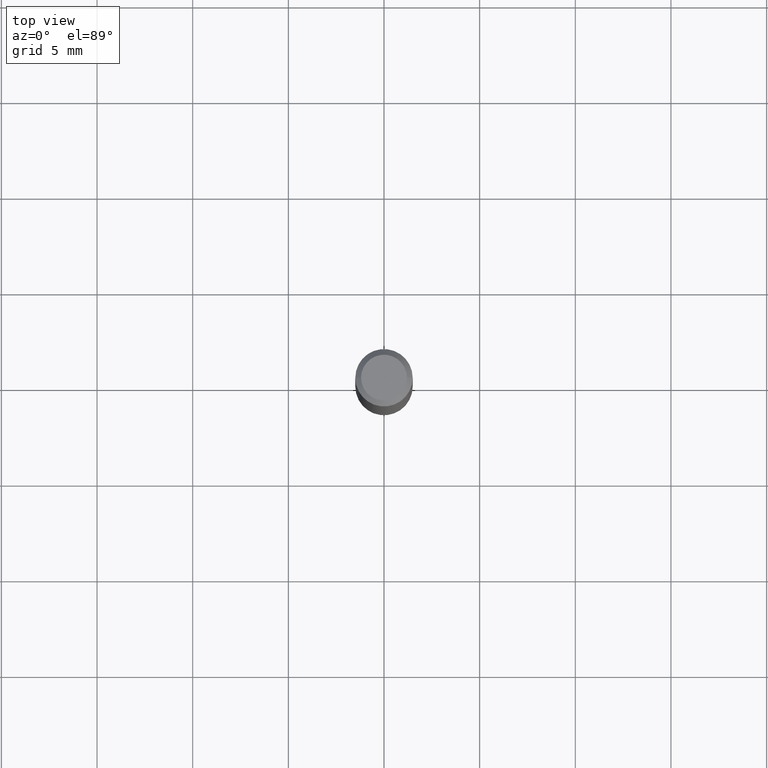
[diagram: clean part render]
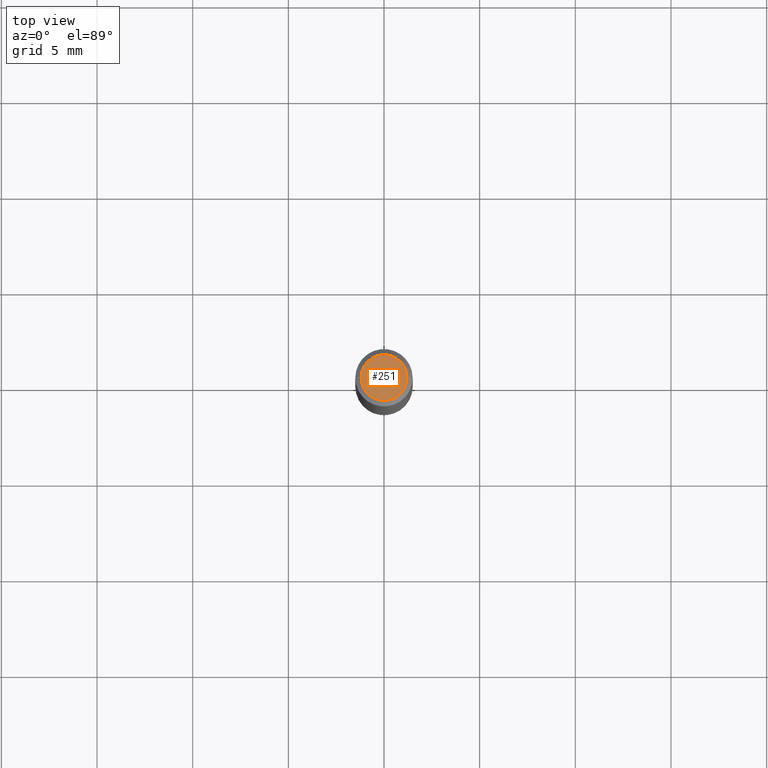
[diagram: same view with one face highlighted and labeled with its STEP entity id]
A machine part, top view. The second image highlights one B-rep face of the part: STEP entity #251.
In plain terms, the highlighted planar face has unit normal (0, -0, -1).
Its self-contained STEP definition (entity closure, byte-faithful):
#28 = EDGE_LOOP ( 'NONE', ( #66, #149 ) ) ;
#42 = CARTESIAN_POINT ( 'NONE',  ( 8.265746106709734507E-48, -1.180129479067563789E-33, -3.380025165646692144E-19 ) ) ;
#55 = EDGE_CURVE ( 'NONE', #165, #76, #122, .T. ) ;
#66 = ORIENTED_EDGE ( 'NONE', *, *, #422, .T. ) ;
#76 = VERTEX_POINT ( 'NONE', #459 ) ;
#109 = FACE_OUTER_BOUND ( 'NONE', #28, .T. ) ;
#122 = CIRCLE ( 'NONE', #141, 0.04724000000000000421 ) ;
#123 = DIRECTION ( 'NONE',  ( -2.445468806185136597E-29, 3.491481338843145583E-15, 1.000000000000000000 ) ) ;
#138 = DIRECTION ( 'NONE',  ( 2.438088387897960049E-29, -3.491481338843145188E-15, -1.000000000000000000 ) ) ;
#141 = AXIS2_PLACEMENT_3D ( 'NONE', #42, #123, #470 ) ;
#149 = ORIENTED_EDGE ( 'NONE', *, *, #55, .T. ) ;
#154 = AXIS2_PLACEMENT_3D ( 'NONE', #420, #386, #350 ) ;
#165 = VERTEX_POINT ( 'NONE', #371 ) ;
#251 = ADVANCED_FACE ( 'NONE', ( #109 ), #477, .F. ) ;
#288 = DIRECTION ( 'NONE',  ( -1.000000000000000000, 6.982962677686265922E-15, -4.876176775795935793E-29 ) ) ;
#317 = AXIS2_PLACEMENT_3D ( 'NONE', #368, #138, #288 ) ;
#350 = DIRECTION ( 'NONE',  ( 1.000000000000000000, -6.982962677686266711E-15, 4.876185090822587894E-29 ) ) ;
#366 = CIRCLE ( 'NONE', #154, 0.04724000000000000421 ) ;
#368 = CARTESIAN_POINT ( 'NONE',  ( 4.132873053354867254E-48, -5.900647395337818946E-34, -1.690012582823346072E-19 ) ) ;
#371 = CARTESIAN_POINT ( 'NONE',  ( 0.04724000000000000421, -3.852183633974369345E-16, -3.380025165621689721E-19 ) ) ;
#386 = DIRECTION ( 'NONE',  ( -2.445468806185136597E-29, 3.491481338843145583E-15, 1.000000000000000000 ) ) ;
#420 = CARTESIAN_POINT ( 'NONE',  ( 8.265746106709734507E-48, -1.180129479067563789E-33, -3.380025165646692144E-19 ) ) ;
#422 = EDGE_CURVE ( 'NONE', #76, #165, #366, .T. ) ;
#459 = CARTESIAN_POINT ( 'NONE',  ( -0.04724000000000000421, 3.504923541997677355E-16, -3.380025165670481712E-19 ) ) ;
#470 = DIRECTION ( 'NONE',  ( 1.000000000000000000, -6.982962677686266711E-15, 4.876185090822587894E-29 ) ) ;
#477 = PLANE ( 'NONE',  #317 ) ;